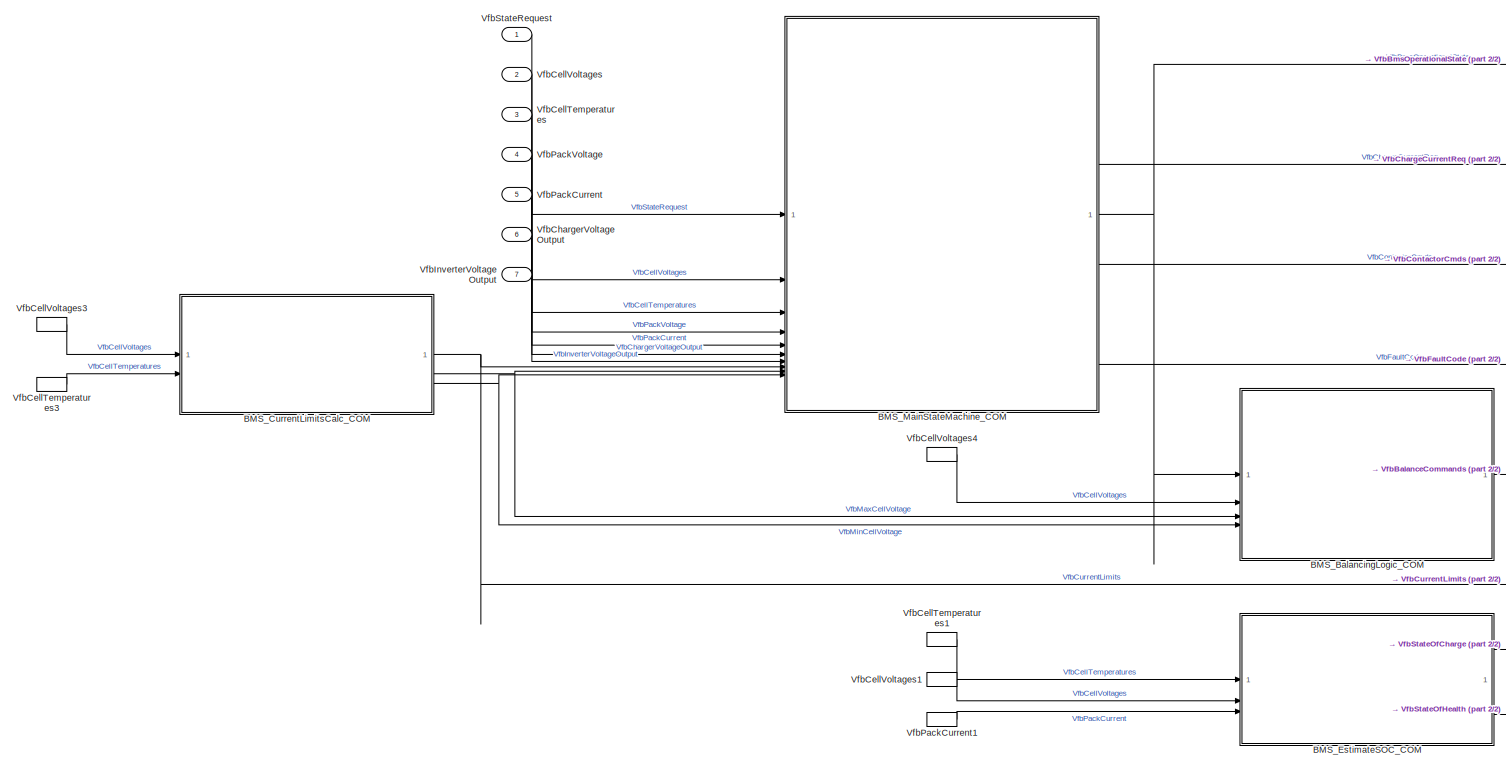
[diagram: root canvas - part 1/2, most of the canvas]
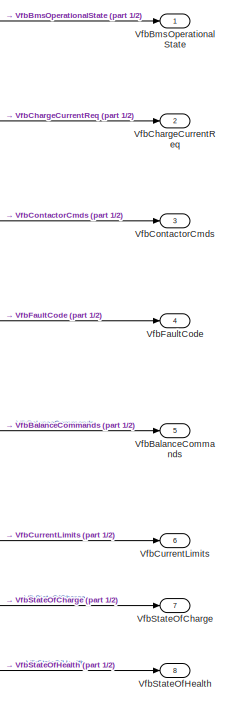
[diagram: root canvas - part 2/2, right side, full height]
MODEL slx_1d9284c032a2
KIND model
CONFIG AbsTol = auto
CONFIG EnableMultiTasking = on
CONFIG FixedStep = auto
CONFIG MaxStep = auto
CONFIG MinStep = auto
CONFIG RelTol = 1e-3
CONFIG SampleTimeConstraint = Unconstrained
CONFIG SolverName = FixedStepDiscrete
CONFIG StartTime = 0.0
CONFIG StopTime = 10.0
WORKSPACE source: external: MAT-File  (data not in archive)
BLOCK [ModelReference] BMS_BalancingLogic_COM
  HasExplicitPartitions = on
  ModelNameDialog = BMS_BalancingLogic_COM.slx
  ModelReferenceVersion = 1.53
  ScheduleRates = on
  ScheduleRatesWith = Schedule Editor
BLOCK [ModelReference] BMS_CurrentLimitsCalc_COM
  HasExplicitPartitions = on
  ModelNameDialog = BMS_CurrentLimitsCalc_COM.slx
  ModelReferenceVersion = 1.46
  ScheduleRates = on
  ScheduleRatesWith = Schedule Editor
BLOCK [ModelReference] BMS_EstimateSOC_COM
  HasExplicitPartitions = on
  ModelNameDialog = BMS_EstimateSOC_COM.slx
  ModelReferenceVersion = 1.41
  ScheduleRates = on
  ScheduleRatesWith = Schedule Editor
BLOCK [ModelReference] BMS_MainStateMachine_COM
  HasExplicitPartitions = on
  ModelNameDialog = BMS_MainStateMachine_COM.slx
  ModelReferenceVersion = 1.83
  ScheduleRates = on
  ScheduleRatesWith = Schedule Editor
BLOCK [Outport] VfbBalanceCommands
  OutDataTypeStr = boolean
  Port = 5
  PortDimensions = BATT.Package.Ns_Module*BATT.Package.NumModules
BLOCK [Outport] VfbBmsOperationalState
  OutDataTypeStr = Enum: BMS_State_Enum
  PortDimensions = 1
BLOCK [Inport] VfbCellTemperatures
  OutDataTypeStr = single
  Port = 3
  PortDimensions = BATT.Package.NumModules
  Unit = °C
BLOCK [InportShadow] VfbCellTemperatures1
  OutDataTypeStr = single
  Port = 3
  PortDimensions = BATT.Package.NumModules
  Unit = °C
BLOCK [InportShadow] VfbCellTemperatures3
  OutDataTypeStr = single
  Port = 3
  PortDimensions = BATT.Package.NumModules
  Unit = °C
BLOCK [Inport] VfbCellVoltages
  OutDataTypeStr = single
  Port = 2
  PortDimensions = BATT.Package.NumModules
  Unit = V
BLOCK [InportShadow] VfbCellVoltages1
  OutDataTypeStr = single
  Port = 2
  PortDimensions = BATT.Package.NumModules
  Unit = V
BLOCK [InportShadow] VfbCellVoltages3
  OutDataTypeStr = single
  Port = 2
  PortDimensions = BATT.Package.NumModules
  Unit = V
BLOCK [InportShadow] VfbCellVoltages4
  OutDataTypeStr = single
  Port = 2
  PortDimensions = BATT.Package.NumModules
  Unit = V
BLOCK [Outport] VfbChargeCurrentReq
  OutDataTypeStr = single
  Port = 2
  PortDimensions = 1
  Unit = A
BLOCK [Inport] VfbChargerVoltageOutput
  OutDataTypeStr = single
  Port = 6
  PortDimensions = 1
  Unit = V
BLOCK [Outport] VfbContactorCmds
  BusOutputAsStruct = on
  OutDataTypeStr = Bus: BMS_strContactorCmds
  Port = 3
BLOCK [Outport] VfbCurrentLimits
  OutDataTypeStr = single
  Port = 6
  Unit = A
BLOCK [Outport] VfbFaultCode
  OutDataTypeStr = uint8
  Port = 4
  PortDimensions = 1
BLOCK [Inport] VfbInverterVoltageOutput
  OutDataTypeStr = single
  Port = 7
  PortDimensions = 1
  Unit = V
BLOCK [Inport] VfbPackCurrent
  OutDataTypeStr = single
  Port = 5
  PortDimensions = 1
  Unit = A
BLOCK [InportShadow] VfbPackCurrent1
  OutDataTypeStr = single
  Port = 5
  PortDimensions = 1
  Unit = A
BLOCK [Inport] VfbPackVoltage
  OutDataTypeStr = single
  Port = 4
  PortDimensions = 1
  Unit = V
BLOCK [Outport] VfbStateOfCharge
  OutDataTypeStr = single
  Port = 7
  Unit = %
BLOCK [Outport] VfbStateOfHealth
  OutDataTypeStr = single
  Port = 8
  Unit = %
BLOCK [Inport] VfbStateRequest
  OutDataTypeStr = Enum: BMS_State_Enum
  PortDimensions = 1
LINE BMS_BalancingLogic_COM:1 -> VfbBalanceCommands:1
NET BMS_CurrentLimitsCalc_COM:1 -> BMS_MainStateMachine_COM:8, VfbCurrentLimits:1
NET BMS_CurrentLimitsCalc_COM:2 -> BMS_BalancingLogic_COM:3, BMS_MainStateMachine_COM:9
NET BMS_CurrentLimitsCalc_COM:3 -> BMS_BalancingLogic_COM:4, BMS_MainStateMachine_COM:10
LINE BMS_EstimateSOC_COM:1 -> VfbStateOfCharge:1
LINE BMS_EstimateSOC_COM:2 -> VfbStateOfHealth:1
NET BMS_MainStateMachine_COM:1 -> BMS_BalancingLogic_COM:1, VfbBmsOperationalState:1
LINE BMS_MainStateMachine_COM:2 -> VfbChargeCurrentReq:1
LINE BMS_MainStateMachine_COM:3 -> VfbContactorCmds:1
LINE BMS_MainStateMachine_COM:4 -> VfbFaultCode:1
LINE VfbCellTemperatures1:1 -> BMS_EstimateSOC_COM:1
LINE VfbCellTemperatures3:1 -> BMS_CurrentLimitsCalc_COM:2
LINE VfbCellTemperatures:1 -> BMS_MainStateMachine_COM:3
LINE VfbCellVoltages1:1 -> BMS_EstimateSOC_COM:2
LINE VfbCellVoltages3:1 -> BMS_CurrentLimitsCalc_COM:1
LINE VfbCellVoltages4:1 -> BMS_BalancingLogic_COM:2
LINE VfbCellVoltages:1 -> BMS_MainStateMachine_COM:2
LINE VfbChargerVoltageOutput:1 -> BMS_MainStateMachine_COM:6
LINE VfbInverterVoltageOutput:1 -> BMS_MainStateMachine_COM:7
LINE VfbPackCurrent1:1 -> BMS_EstimateSOC_COM:3
LINE VfbPackCurrent:1 -> BMS_MainStateMachine_COM:5
LINE VfbPackVoltage:1 -> BMS_MainStateMachine_COM:4
LINE VfbStateRequest:1 -> BMS_MainStateMachine_COM:1
note: NET lines group one-source signal fan-out (src -> all destinations, sorted); 1:1 wires keep LINE
